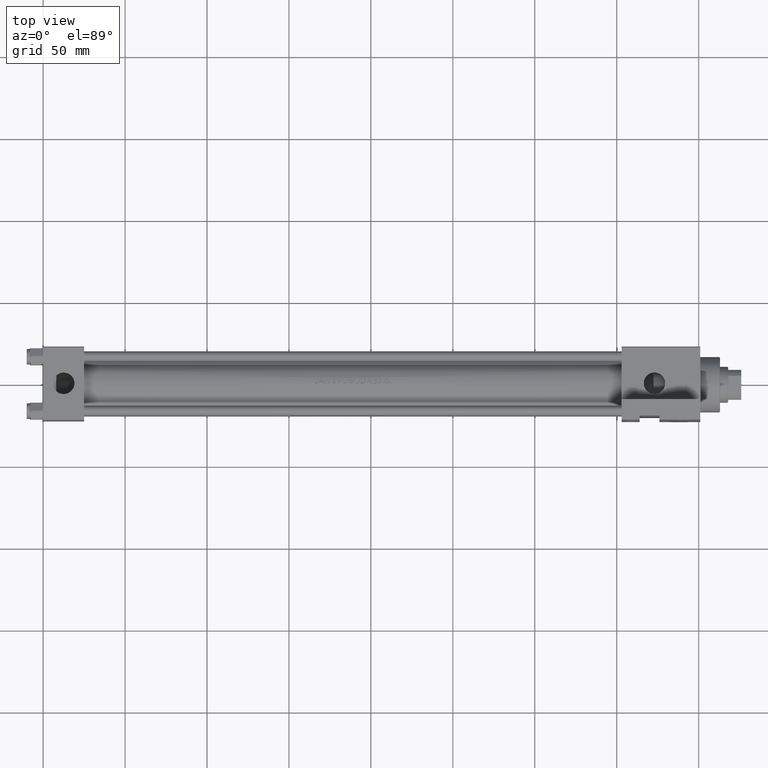
[diagram: clean part render]
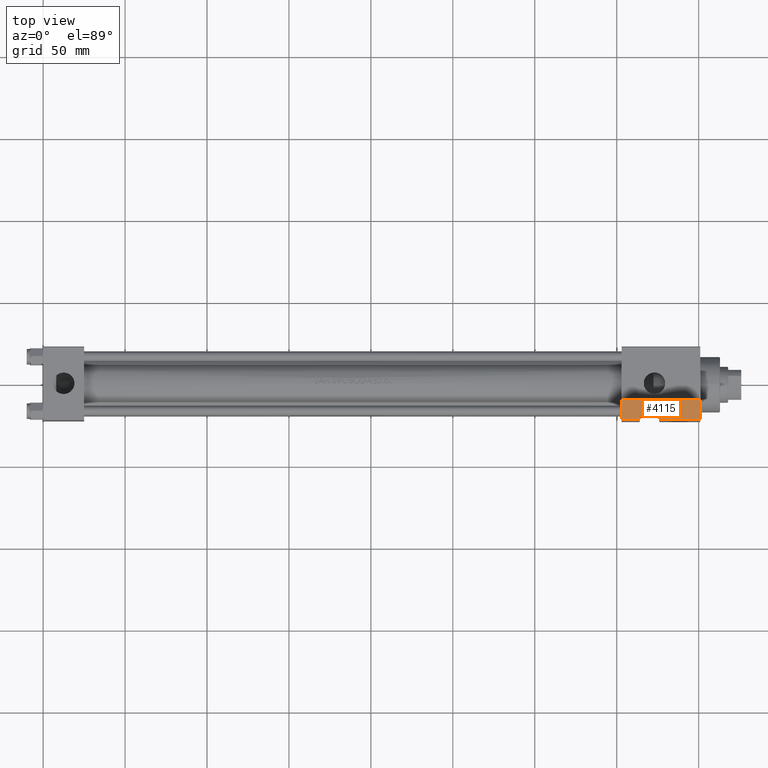
[diagram: same view with one face highlighted and labeled with its STEP entity id]
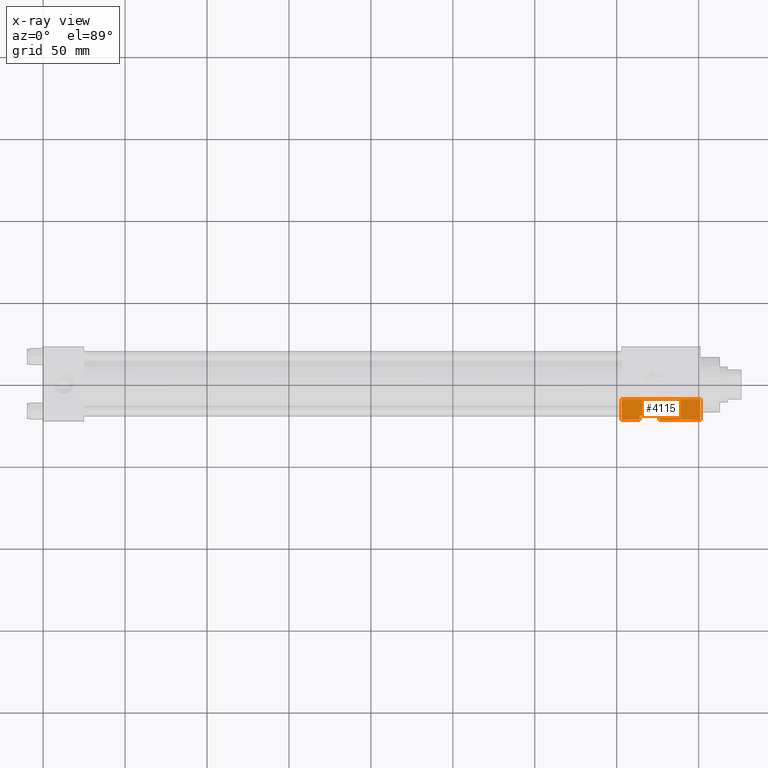
[diagram: x-ray of the same camera — body ghosted, the highlighted face saturated]
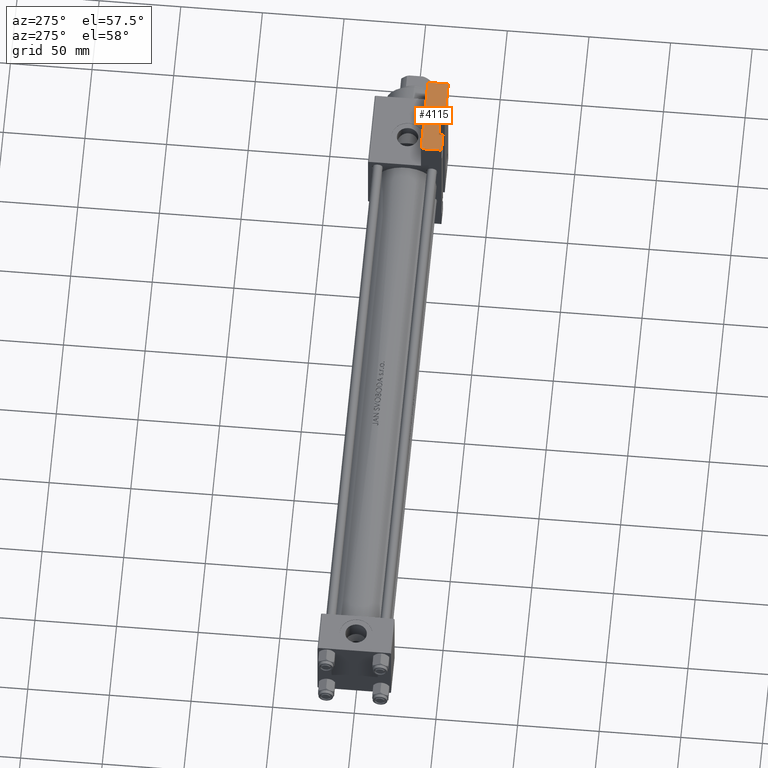
[diagram: same view with one face highlighted and labeled with its STEP entity id]
A machine part, top view. The second image highlights one B-rep face of the part: STEP entity #4115.
The next image is the same camera in x-ray: the body ghosted, the highlighted face saturated — about 0% of this face is hidden behind the body in this view.
A second angle (auxiliary view) of the same face is appended — the face is thin or edge-on in the first view.
In plain terms, the highlighted planar face has unit normal (-0, 0, 1).
Its self-contained STEP definition (entity closure, byte-faithful):
#983 = VECTOR ( 'NONE', #22901, 1000.000000000000000 ) ;
#1562 = VERTEX_POINT ( 'NONE', #42842 ) ;
#2221 = DIRECTION ( 'NONE',  ( -1.000000000000000000, 2.891205793294679312E-16, -0.000000000000000000 ) ) ;
#2527 = DIRECTION ( 'NONE',  ( 0.000000000000000000, 0.000000000000000000, -1.000000000000000000 ) ) ;
#3071 = CARTESIAN_POINT ( 'NONE',  ( 353.0000000000000568, -42.00000000000003553, -9.999999999999998224 ) ) ;
#4115 = ADVANCED_FACE ( 'NONE', ( #21417 ), #17794, .T. ) ;
#4178 = EDGE_CURVE ( 'NONE', #11622, #33913, #37104, .T. ) ;
#4710 = EDGE_CURVE ( 'NONE', #40389, #36683, #20770, .T. ) ;
#5020 = CARTESIAN_POINT ( 'NONE',  ( 353.0000000000000568, -42.00000000000003553, -22.50000000000000000 ) ) ;
#6083 = LINE ( 'NONE', #16946, #29441 ) ;
#6141 = LINE ( 'NONE', #21571, #24071 ) ;
#6532 = ORIENTED_EDGE ( 'NONE', *, *, #39003, .F. ) ;
#7164 = DIRECTION ( 'NONE',  ( -1.000000000000000000, 2.891205793294679312E-16, -0.000000000000000000 ) ) ;
#7741 = EDGE_LOOP ( 'NONE', ( #32658, #42105, #21846, #14962, #37477, #23934, #6532, #35956 ) ) ;
#7842 = CARTESIAN_POINT ( 'NONE',  ( 401.0000000000000000, -42.00000000000004974, -9.999999999999998224 ) ) ;
#9370 = DIRECTION ( 'NONE',  ( 1.000000000000000000, -2.891205793294679312E-16, 0.000000000000000000 ) ) ;
#9388 = DIRECTION ( 'NONE',  ( -0.000000000000000000, -0.000000000000000000, -1.000000000000000000 ) ) ;
#9422 = VERTEX_POINT ( 'NONE', #28676 ) ;
#9458 = EDGE_CURVE ( 'NONE', #11622, #40389, #14399, .T. ) ;
#10006 = LINE ( 'NONE', #17247, #30247 ) ;
#11622 = VERTEX_POINT ( 'NONE', #7842 ) ;
#12960 = AXIS2_PLACEMENT_3D ( 'NONE', #3071, #38818, #9370 ) ;
#13948 = CARTESIAN_POINT ( 'NONE',  ( 353.0000000000000568, -42.00000000000003553, -9.999999999999998224 ) ) ;
#14228 = DIRECTION ( 'NONE',  ( -1.000000000000000000, 2.891205793294679312E-16, -0.000000000000000000 ) ) ;
#14399 = LINE ( 'NONE', #29145, #47063 ) ;
#14962 = ORIENTED_EDGE ( 'NONE', *, *, #4178, .T. ) ;
#15660 = LINE ( 'NONE', #45099, #983 ) ;
#16946 = CARTESIAN_POINT ( 'NONE',  ( 353.0000000000000568, -42.00000000000003553, -22.50000000000000000 ) ) ;
#17247 = CARTESIAN_POINT ( 'NONE',  ( 353.0000000000000568, -42.00000000000003553, -9.999999999999998224 ) ) ;
#17794 = PLANE ( 'NONE',  #12960 ) ;
#19132 = VECTOR ( 'NONE', #7164, 1000.000000000000000 ) ;
#20770 = LINE ( 'NONE', #43219, #33059 ) ;
#20787 = CARTESIAN_POINT ( 'NONE',  ( 376.0000000000000000, -41.99999999999996447, -22.50000000000000000 ) ) ;
#20973 = CARTESIAN_POINT ( 'NONE',  ( 364.0000000000000568, -41.99999999999996447, -20.00000000000000000 ) ) ;
#21417 = FACE_OUTER_BOUND ( 'NONE', #7741, .T. ) ;
#21571 = CARTESIAN_POINT ( 'NONE',  ( 364.0000000000000568, -41.99999999999996447, -20.00000000000000000 ) ) ;
#21846 = ORIENTED_EDGE ( 'NONE', *, *, #9458, .F. ) ;
#22901 = DIRECTION ( 'NONE',  ( -0.000000000000000000, -0.000000000000000000, -1.000000000000000000 ) ) ;
#23934 = ORIENTED_EDGE ( 'NONE', *, *, #31052, .F. ) ;
#24071 = VECTOR ( 'NONE', #47390, 1000.000000000000000 ) ;
#25051 = DIRECTION ( 'NONE',  ( 0.000000000000000000, 0.000000000000000000, -1.000000000000000000 ) ) ;
#28676 = CARTESIAN_POINT ( 'NONE',  ( 364.0000000000000568, -41.99999999999996447, -22.50000000000000000 ) ) ;
#29145 = CARTESIAN_POINT ( 'NONE',  ( 401.0000000000000000, -42.00000000000004974, -9.999999999999998224 ) ) ;
#29441 = VECTOR ( 'NONE', #2221, 1000.000000000000000 ) ;
#30247 = VECTOR ( 'NONE', #2527, 1000.000000000000000 ) ;
#30645 = CARTESIAN_POINT ( 'NONE',  ( 376.0000000000000000, -41.99999999999996447, -20.00000000000000000 ) ) ;
#30780 = EDGE_CURVE ( 'NONE', #33913, #42614, #10006, .T. ) ;
#30790 = EDGE_CURVE ( 'NONE', #46024, #1562, #6141, .T. ) ;
#31052 = EDGE_CURVE ( 'NONE', #9422, #42614, #6083, .T. ) ;
#32658 = ORIENTED_EDGE ( 'NONE', *, *, #32899, .T. ) ;
#32807 = CARTESIAN_POINT ( 'NONE',  ( 401.0000000000000000, -42.00000000000004974, -22.50000000000000000 ) ) ;
#32899 = EDGE_CURVE ( 'NONE', #46024, #36683, #15660, .T. ) ;
#33059 = VECTOR ( 'NONE', #14228, 1000.000000000000000 ) ;
#33913 = VERTEX_POINT ( 'NONE', #13948 ) ;
#34044 = LINE ( 'NONE', #20973, #38840 ) ;
#35956 = ORIENTED_EDGE ( 'NONE', *, *, #30790, .F. ) ;
#36683 = VERTEX_POINT ( 'NONE', #20787 ) ;
#37104 = LINE ( 'NONE', #40951, #19132 ) ;
#37477 = ORIENTED_EDGE ( 'NONE', *, *, #30780, .T. ) ;
#38818 = DIRECTION ( 'NONE',  ( -2.891205793294679312E-16, -1.000000000000000000, 0.000000000000000000 ) ) ;
#38840 = VECTOR ( 'NONE', #9388, 1000.000000000000000 ) ;
#39003 = EDGE_CURVE ( 'NONE', #1562, #9422, #34044, .T. ) ;
#40389 = VERTEX_POINT ( 'NONE', #32807 ) ;
#40951 = CARTESIAN_POINT ( 'NONE',  ( 353.0000000000000568, -42.00000000000003553, -9.999999999999998224 ) ) ;
#42105 = ORIENTED_EDGE ( 'NONE', *, *, #4710, .F. ) ;
#42614 = VERTEX_POINT ( 'NONE', #5020 ) ;
#42842 = CARTESIAN_POINT ( 'NONE',  ( 364.0000000000000568, -41.99999999999996447, -20.00000000000000000 ) ) ;
#43219 = CARTESIAN_POINT ( 'NONE',  ( 353.0000000000000568, -42.00000000000003553, -22.50000000000000000 ) ) ;
#45099 = CARTESIAN_POINT ( 'NONE',  ( 376.0000000000000000, -41.99999999999996447, -20.00000000000000000 ) ) ;
#46024 = VERTEX_POINT ( 'NONE', #30645 ) ;
#47063 = VECTOR ( 'NONE', #25051, 1000.000000000000000 ) ;
#47390 = DIRECTION ( 'NONE',  ( -1.000000000000000000, -0.000000000000000000, -0.000000000000000000 ) ) ;